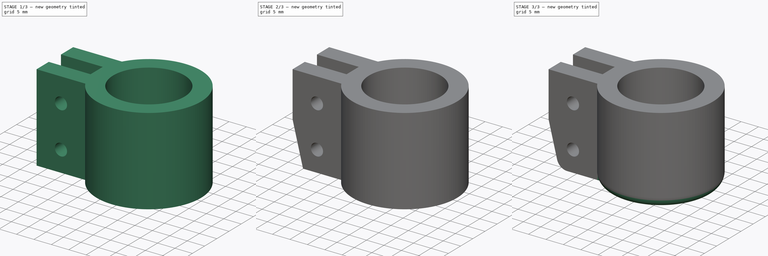
[diagram: build sequence overview — one tinted view per stage of 3, left to right]
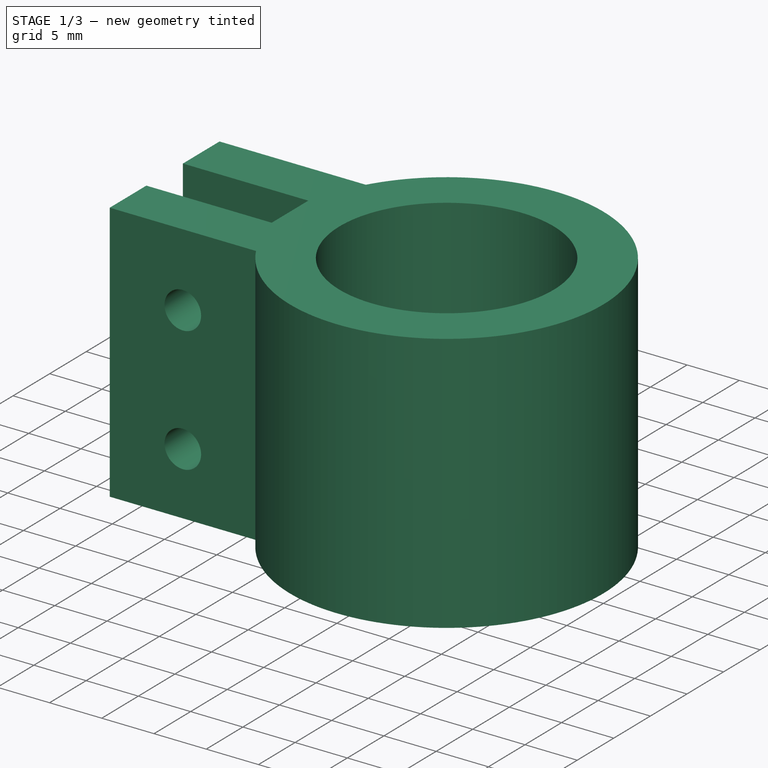
[diagram: stage 1 of 3 — iso view after this stage's code; geometry added in this stage tinted green]
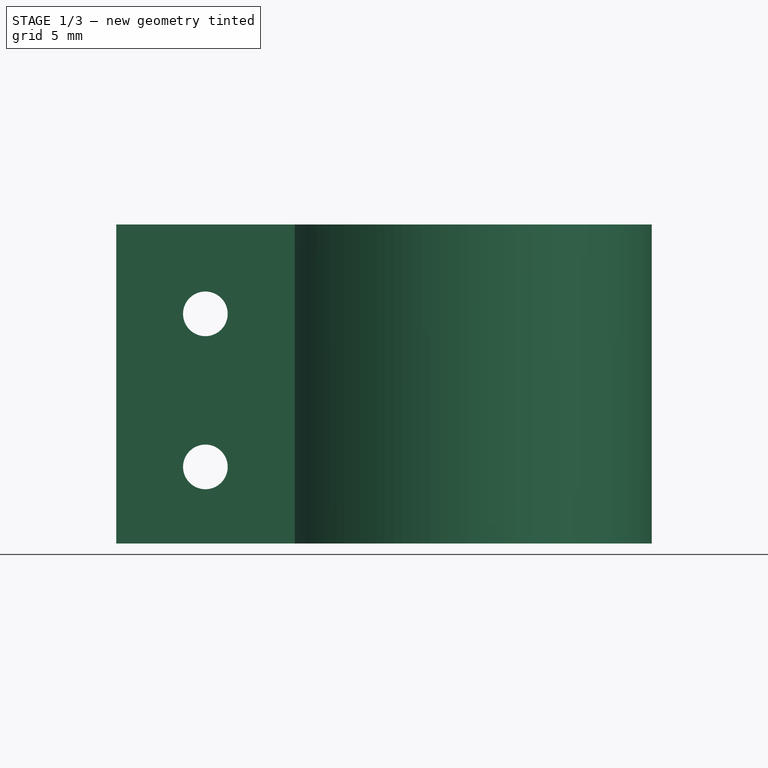
[diagram: stage 1 of 3 — front view after this stage's code; geometry added in this stage tinted green]
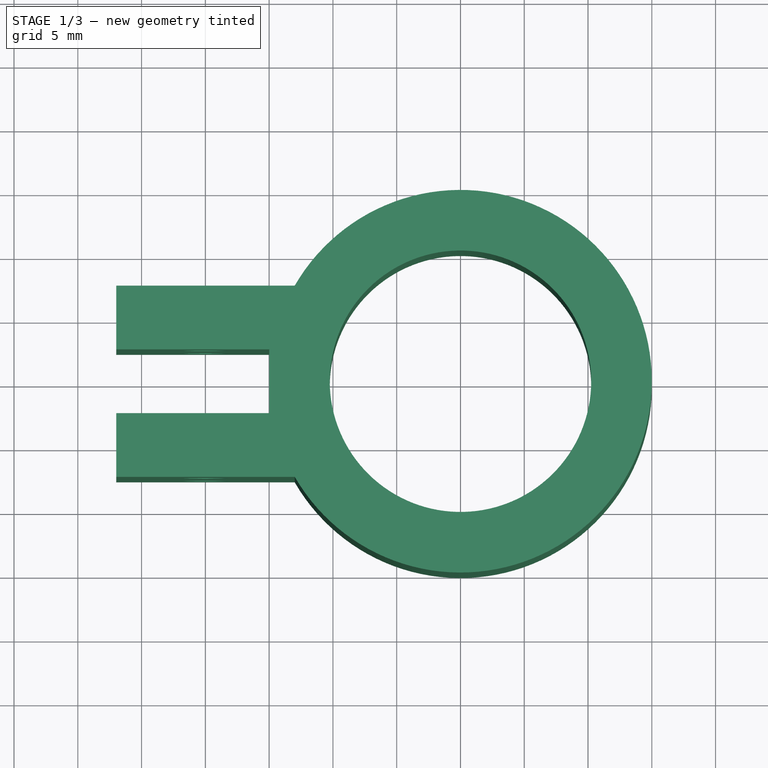
[diagram: stage 1 of 3 — top view after this stage's code; geometry added in this stage tinted green]
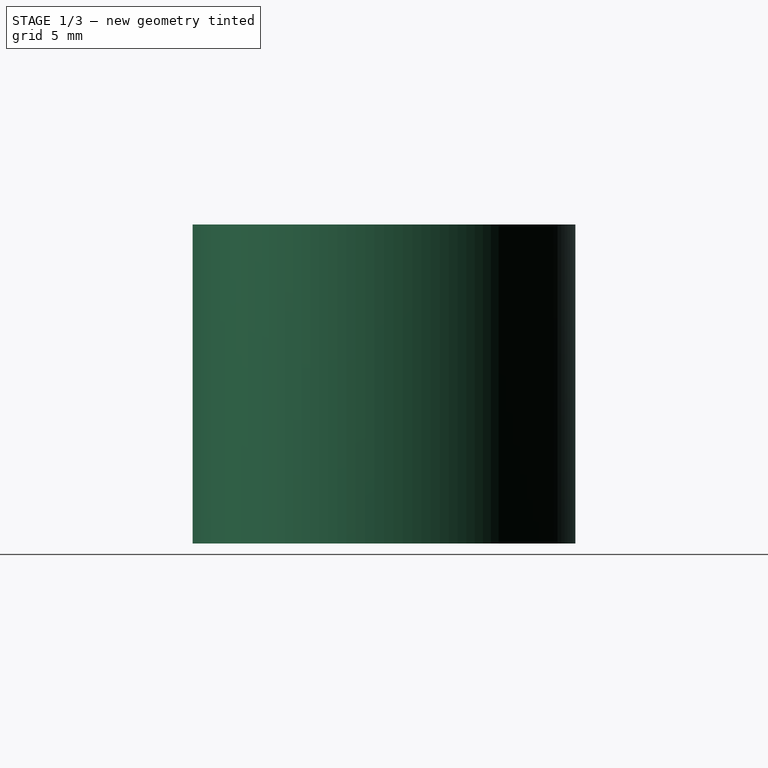
[diagram: stage 1 of 3 — right view after this stage's code; geometry added in this stage tinted green]
FCSTD DOCUMENT  (FreeCAD 0.20R29603 (Git))
Label: tube-ring-20mm
License: All rights reserved
LicenseURL: http://en.wikipedia.org/wiki/All_rights_reserved
objects: Sketcher::SketchObject×3, PartDesign::Pocket×2, PartDesign::Fillet×2, PartDesign::Pad×1, PartDesign::Chamfer×1, PartDesign::Body×1
note: 16 computed .brp shape members not serialized (recipe doc carries the construction recipe); baked Part::Feature solids carry a one-line shape summary decoded from their .brp

FEATURE [Sketcher::SketchObject] Sketch
  FullyConstrained = true
  MapMode = 5
  Support = -> [XY_Plane]
  sketch-geometry (10):
    g0: Circle CenterX=0 CenterY=0 CenterZ=0 NormalX=0 NormalY=0 NormalZ=1 AngleXU=0 Radius=10.25
    g1: ArcOfCircle CenterX=0 CenterY=0 CenterZ=0 NormalX=0 NormalY=0 NormalZ=1 AngleXU=0 Radius=15 StartAngle=0 EndAngle=2.61799
    g2: ArcOfCircle CenterX=0 CenterY=0 CenterZ=0 NormalX=0 NormalY=0 NormalZ=1 AngleXU=0 Radius=15 StartAngle=3.66519 EndAngle=6.28319
    g3: LineSegment StartX=-12.9904 StartY=7.5 StartZ=0 EndX=-26.9904 EndY=7.5 EndZ=0
    g4: LineSegment StartX=-12.9904 StartY=-7.5 StartZ=0 EndX=-26.9904 EndY=-7.5 EndZ=0
    g5: LineSegment StartX=-26.9904 StartY=7.5 StartZ=0 EndX=-26.9904 EndY=2.5 EndZ=0
    g6: LineSegment StartX=-26.9904 StartY=-7.5 StartZ=0 EndX=-26.9904 EndY=-2.5 EndZ=0
    g7: LineSegment StartX=-26.9904 StartY=2.5 StartZ=0 EndX=-14.9904 EndY=2.5 EndZ=0
    g8: LineSegment StartX=-26.9904 StartY=-2.5 StartZ=0 EndX=-14.9904 EndY=-2.5 EndZ=0
    g9: LineSegment StartX=-14.9904 StartY=2.5 StartZ=0 EndX=-14.9904 EndY=-2.5 EndZ=0
  constraints (30):
    c: Coincident(g0,g-1)
    c: Diameter(g0) = 20.5
    c: Coincident(g1,g0)
    c: PointOnObject(g1,g-1)
    c: Coincident(g2,g0)
    c: PointOnObject(g2,g-1)
    c: DistanceX(g0,g1) = 15
    c: DistanceX(g0,g2) = 15
    c: DistanceY(g-1,g1) = 7.5
    c: DistanceY(g2,g-1) = 7.5
    c: Coincident(g3,g1)
    c: Horizontal(g3)
    c: DistanceX(g3,g3) = 14
    c: Coincident(g4,g2)
    c: Horizontal(g4)
    c: DistanceX(g4,g4) = 14
    c: Coincident(g5,g3)
    c: Vertical(g5)
    c: DistanceY(g5,g5) = 5
    c: Coincident(g6,g4)
    c: Vertical(g6)
    c: DistanceY(g6,g6) = 5
    c: Coincident(g7,g5)
    c: Horizontal(g7)
    c: Coincident(g8,g6)
    c: Horizontal(g8)
    c: DistanceX(g7,g7) = 12
    c: DistanceX(g8,g8) = 12
    c: Coincident(g9,g7)
    c: Coincident(g9,g8)
FEATURE [PartDesign::Pad] Pad
  Direction = (0,0,1)
  Length = 25
  Length2 = 10
  Profile = -> Sketch
  ReferenceAxis = -> Sketch [N_Axis]
  Type = 0
FEATURE [Sketcher::SketchObject] Sketch001
  FullyConstrained = true
  MapMode = 5
  Placement = pos=(0,-7.5,0) rot=(1,0,0;1.5708rad)
  Support = -> [Pad]
  sketch-geometry (2):
    g0: Circle CenterX=-20 CenterY=6 CenterZ=0 NormalX=0 NormalY=0 NormalZ=1 AngleXU=0 Radius=1.75
    g1: Circle CenterX=-20 CenterY=18 CenterZ=0 NormalX=0 NormalY=0 NormalZ=1 AngleXU=0 Radius=1.75
  constraints (6):
    c: DistanceY(g-1,g0) = 6
    c: DistanceY(g-1,g1) = 18
    c: Diameter(g0) = 3.5
    c: Diameter(g1) = 3.5
    c: DistanceX(g1,g-1) = 20
    c: DistanceX(g0,g-1) = 20
FEATURE [PartDesign::Pocket] Pocket
  BaseFeature = -> Pad
  Direction = (0,1,-2e-16)
  Length = 5
  Length2 = 5
  Profile = -> Sketch001
  ReferenceAxis = -> Sketch001 [N_Axis]
  Type = 1
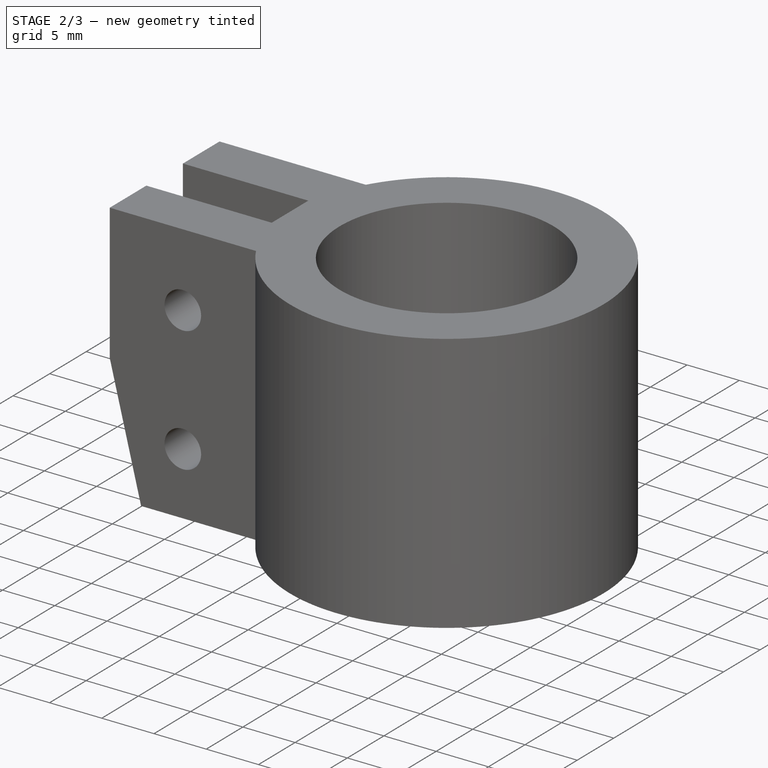
[diagram: stage 2 of 3 — iso view after this stage's code; geometry added in this stage tinted green]
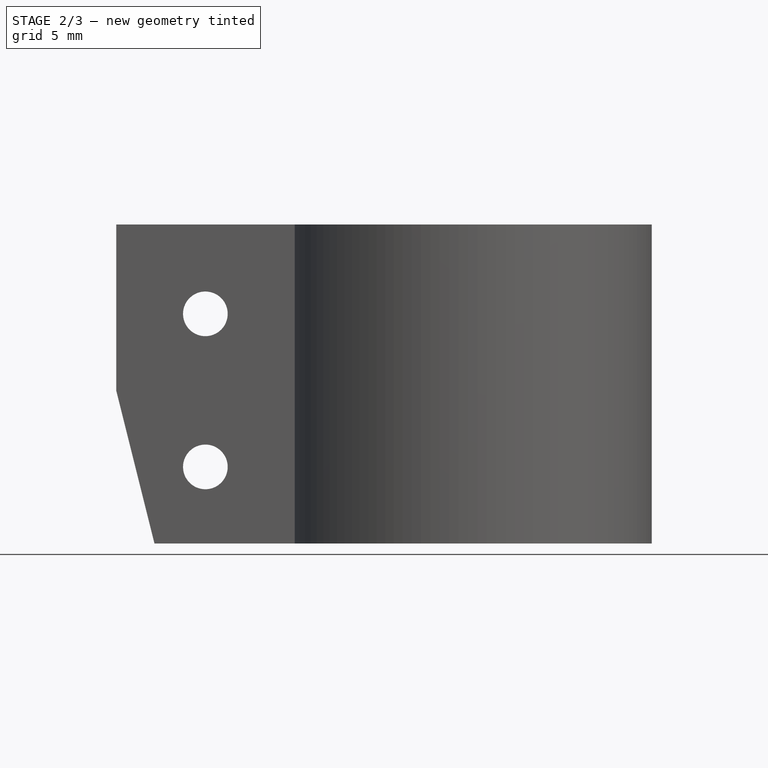
[diagram: stage 2 of 3 — front view after this stage's code; geometry added in this stage tinted green]
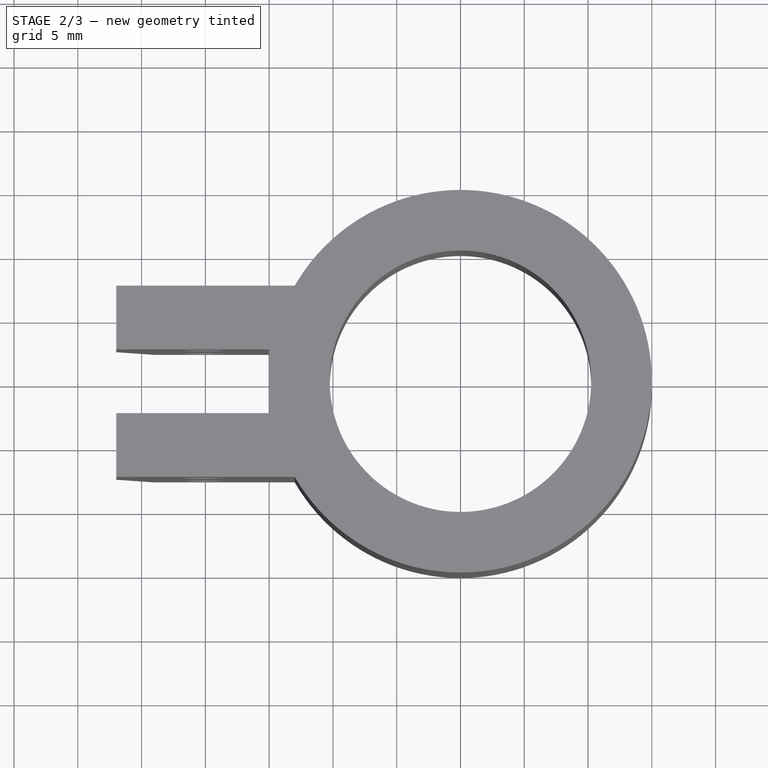
[diagram: stage 2 of 3 — top view after this stage's code; geometry added in this stage tinted green]
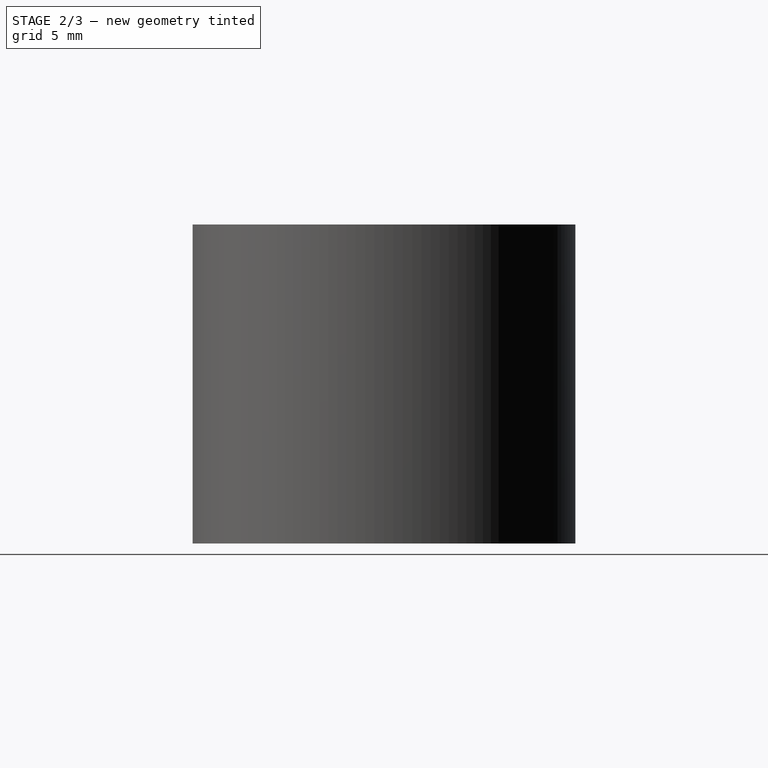
[diagram: stage 2 of 3 — right view after this stage's code; geometry added in this stage tinted green]
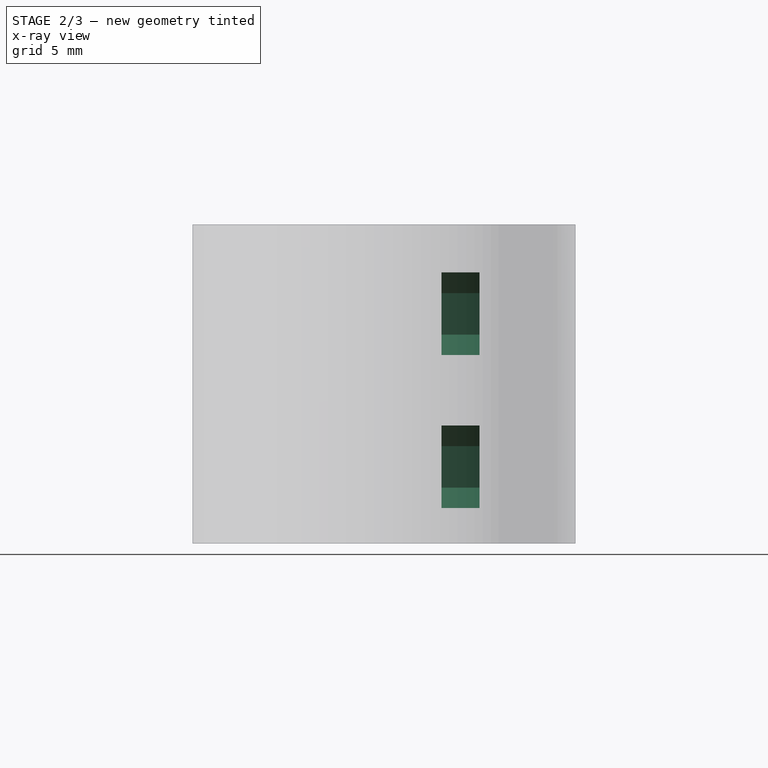
[diagram: stage 2 of 3 — x-ray composite at the right view; earlier geometry ghosted, this stage's added geometry solid]
FEATURE [Sketcher::SketchObject] Sketch002
  FullyConstrained = true
  MapMode = 5
  Placement = pos=(0,7.5,0) rot=(0,0.707107,0.707107;3.14159rad)
  Support = -> [Pocket]
  sketch-geometry (14):
    g0: LineSegment StartX=20 StartY=2.75 StartZ=0 EndX=22.8146 EndY=4.375 EndZ=0
    g1: LineSegment StartX=22.8146 StartY=4.375 StartZ=0 EndX=22.8146 EndY=7.625 EndZ=0
    g2: LineSegment StartX=22.8146 StartY=7.625 StartZ=0 EndX=20 EndY=9.25 EndZ=0
    g3: LineSegment StartX=20 StartY=9.25 StartZ=0 EndX=17.1854 EndY=7.625 EndZ=0
    g4: LineSegment StartX=17.1854 StartY=7.625 StartZ=0 EndX=17.1854 EndY=4.375 EndZ=0
    g5: LineSegment StartX=17.1854 StartY=4.375 StartZ=0 EndX=20 EndY=2.75 EndZ=0
    g6: Circle CenterX=20 CenterY=6 CenterZ=0 NormalX=0 NormalY=0 NormalZ=1 AngleXU=0 Radius=3.25
    g7: LineSegment StartX=20 StartY=14.75 StartZ=0 EndX=22.8146 EndY=16.375 EndZ=0
    g8: LineSegment StartX=22.8146 StartY=16.375 StartZ=0 EndX=22.8146 EndY=19.625 EndZ=0
    g9: LineSegment StartX=22.8146 StartY=19.625 StartZ=0 EndX=20 EndY=21.25 EndZ=0
    g10: LineSegment StartX=20 StartY=21.25 StartZ=0 EndX=17.1854 EndY=19.625 EndZ=0
    g11: LineSegment StartX=17.1854 StartY=19.625 StartZ=0 EndX=17.1854 EndY=16.375 EndZ=0
    g12: LineSegment StartX=17.1854 StartY=16.375 StartZ=0 EndX=20 EndY=14.75 EndZ=0
    g13: Circle CenterX=20 CenterY=18 CenterZ=0 NormalX=0 NormalY=0 NormalZ=1 AngleXU=0 Radius=3.25
  constraints (34):
    c: Coincident(g0,g1)
    c: Coincident(g1,g2)
    c: Coincident(g2,g3)
    c: Coincident(g3,g4)
    c: Coincident(g4,g5)
    c: Coincident(g5,g0)
    c: Equal(g0, g1-g5) x5
    c: PointOnObject(g0,g6)
    c: PointOnObject(g1,g6)
    c: PointOnObject(g2,g6)
    c: PointOnObject(g3,g6)
    c: PointOnObject(g4,g6)
    c: PointOnObject(g5,g6)
    c: Coincident(g7,g8)
    c: Coincident(g8,g9)
    c: Coincident(g9,g10)
    c: Coincident(g10,g11)
    c: Coincident(g11,g12)
    c: Coincident(g12,g7)
    c: Equal(g7, g8-g12) x5
    c: PointOnObject(g7,g13)
    c: PointOnObject(g8,g13)
    c: PointOnObject(g9,g13)
    c: PointOnObject(g10,g13)
    c: PointOnObject(g11,g13)
    c: PointOnObject(g12,g13)
    c: Diameter(g13) = 6.5
    c: DistanceX(g-1,g13) = 20
    c: DistanceX(g-1,g6) = 20
    c: DistanceY(g-1,g6) = 6
    c: DistanceY(g-1,g13) = 18
    c: Diameter(g6) = 6.5
    c: DistanceX(g-1,g9) = 20
    c: DistanceX(g-1,g2) = 20
FEATURE [PartDesign::Pocket] Pocket001
  BaseFeature = -> Pocket
  Direction = (0,-1,2e-16)
  Length = 3
  Length2 = 5
  Profile = -> Sketch002
  ReferenceAxis = -> Sketch002 [N_Axis]
  Type = 0
FEATURE [PartDesign::Chamfer] Chamfer
  Angle = 45
  Base = -> Pocket001 [Edge23,Edge27]
  BaseFeature = -> Pocket001
  ChamferType = 1
  FlipDirection = false
  Size = 3
  Size2 = 12
  SupportTransform = false
  UseAllEdges = false
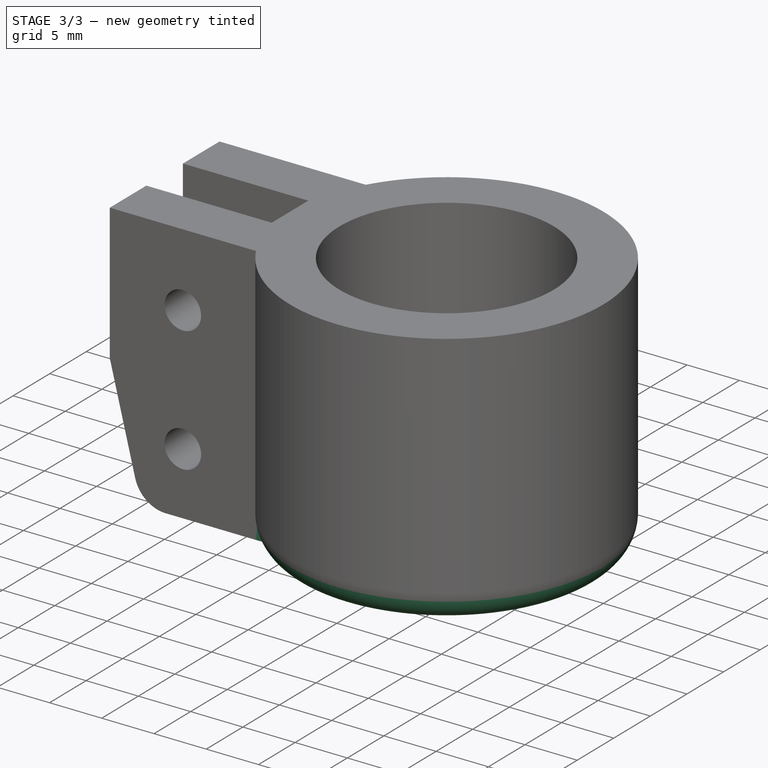
[diagram: stage 3 of 3 — iso view after this stage's code; geometry added in this stage tinted green]
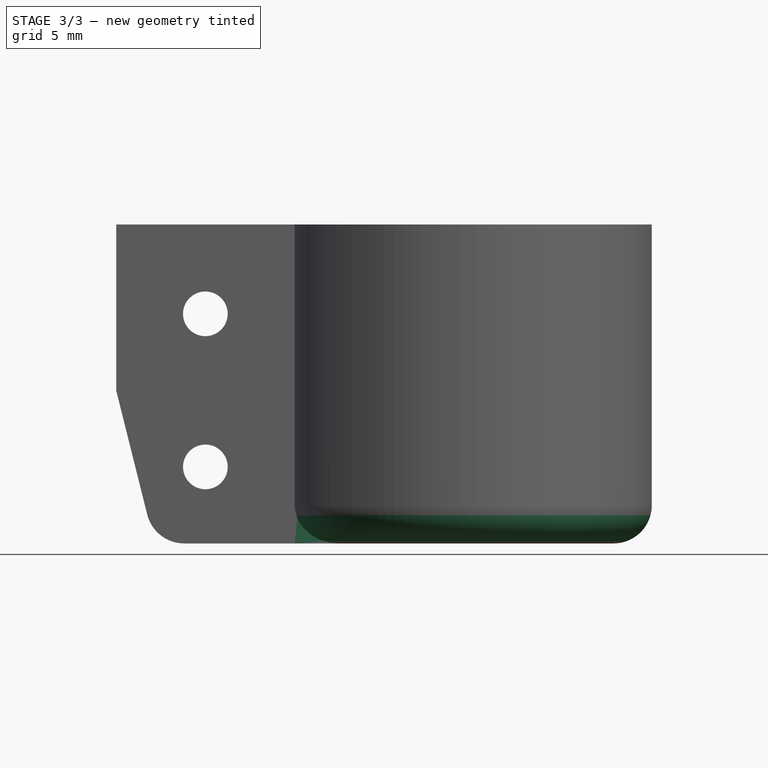
[diagram: stage 3 of 3 — front view after this stage's code; geometry added in this stage tinted green]
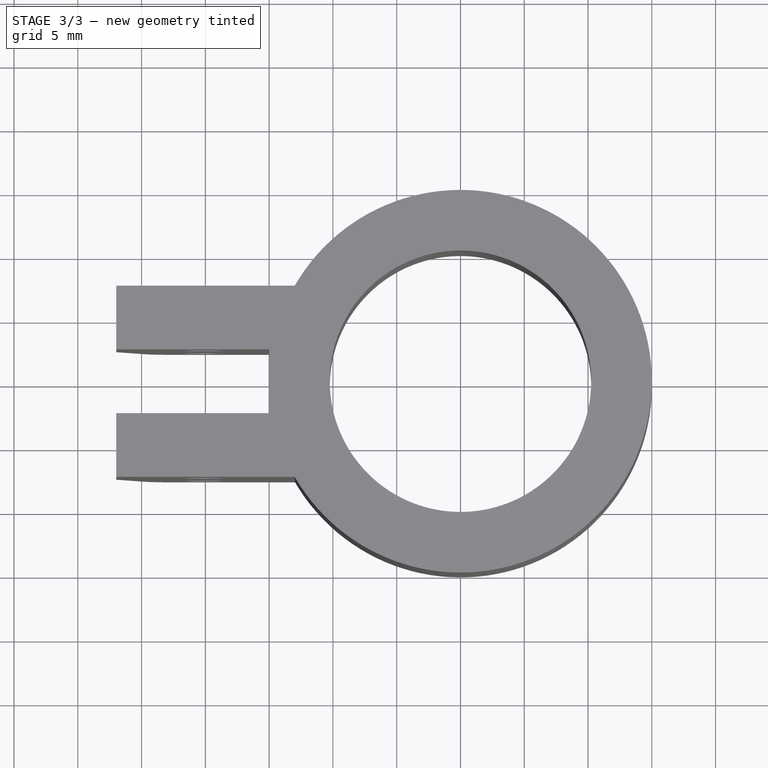
[diagram: stage 3 of 3 — top view after this stage's code; geometry added in this stage tinted green]
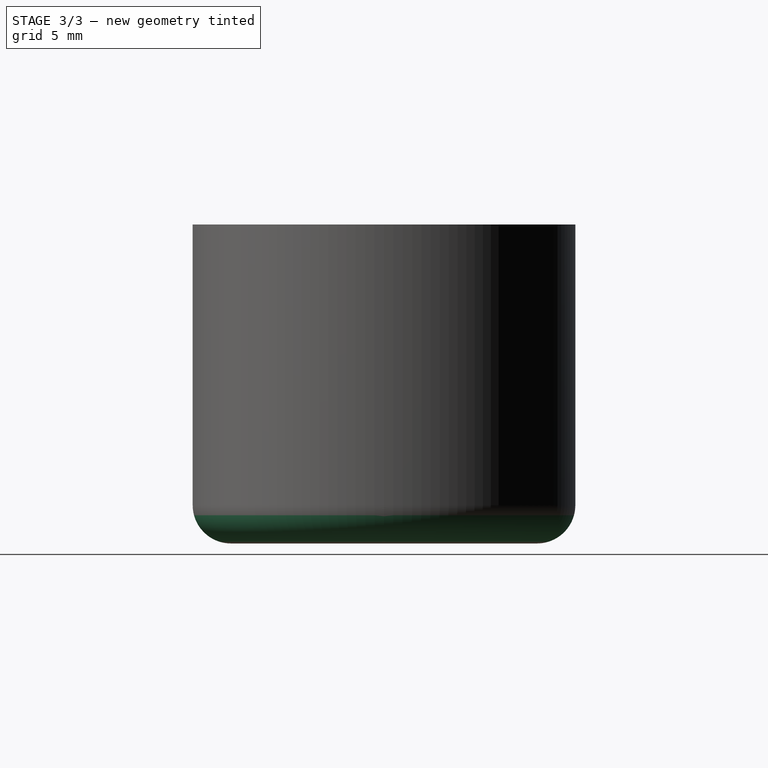
[diagram: stage 3 of 3 — right view after this stage's code; geometry added in this stage tinted green]
FEATURE [PartDesign::Fillet] Fillet
  Base = -> Chamfer [Edge18,Edge25]
  BaseFeature = -> Chamfer
  Radius = 3
  SupportTransform = false
  UseAllEdges = false
FEATURE [PartDesign::Fillet] Fillet001
  Base = -> Fillet [Edge22,Edge20]
  BaseFeature = -> Fillet
  Radius = 3
  SupportTransform = false
  UseAllEdges = false
FEATURE [PartDesign::Body] Body
  Group = -> [Sketch,Pad,Sketch001,Pocket,Sketch002,Pocket001,Chamfer,Fillet,Fillet001]
  Origin = -> Origin
  Tip = -> Fillet001
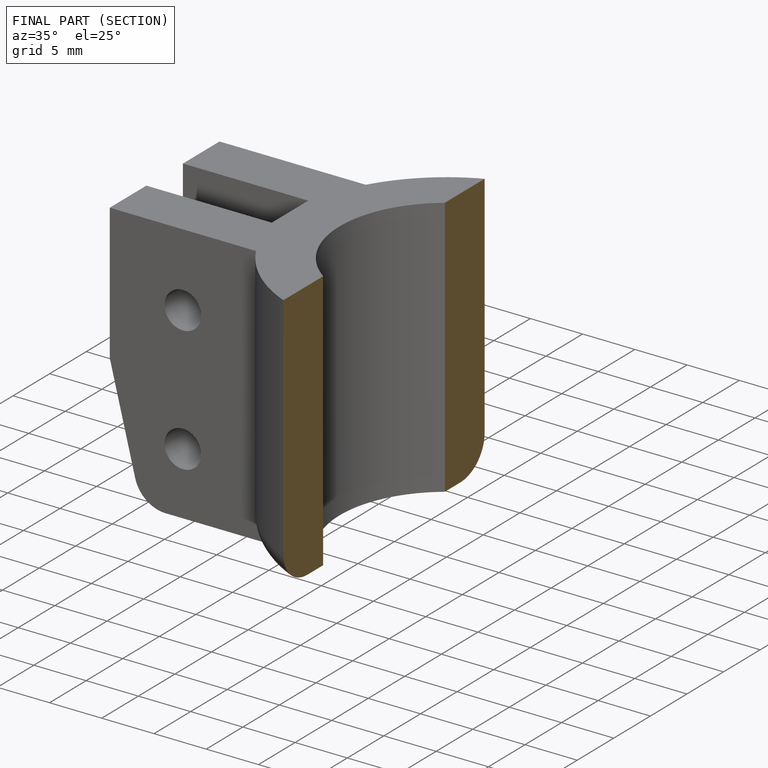
[diagram: finished part — half-section view (interior)]
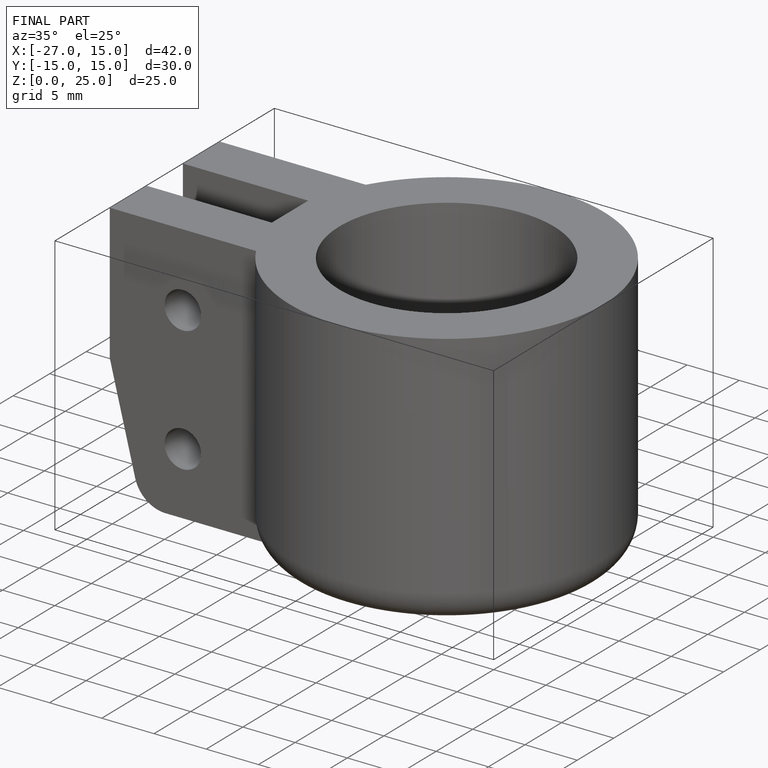
[diagram: finished part — iso view with bounding-box wireframe]
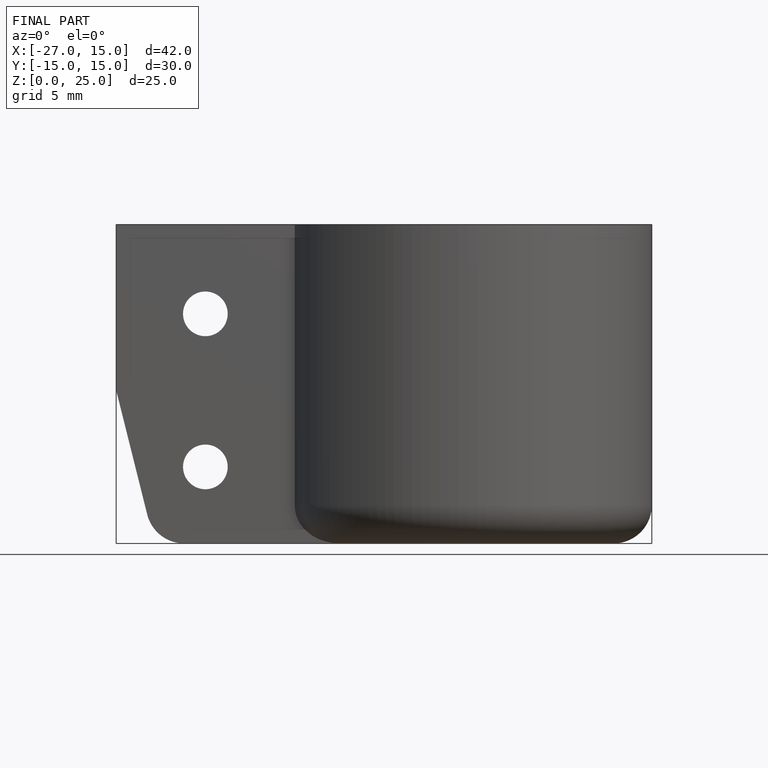
[diagram: finished part — front view with bounding-box wireframe]
